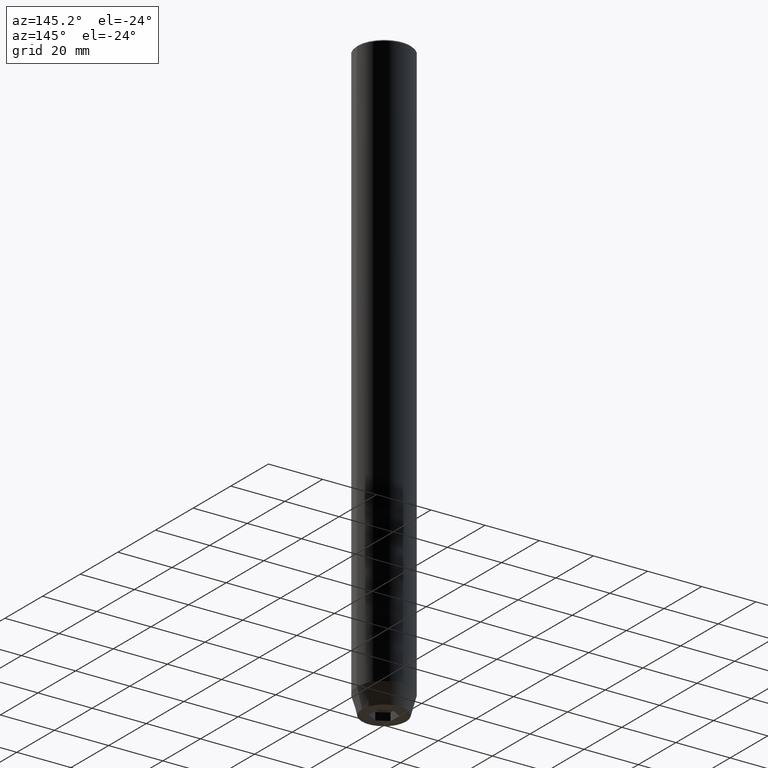
[diagram: clean part render]
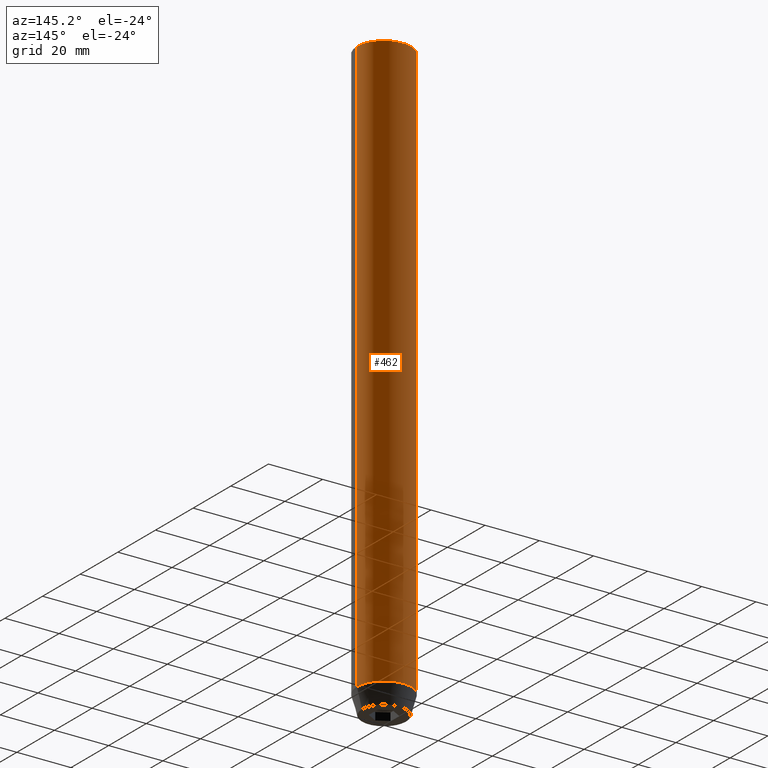
[diagram: same view with one face highlighted and labeled with its STEP entity id]
A machine part, auxiliary view. The second image highlights one B-rep face of the part: STEP entity #462.
In plain terms, the highlighted cylindrical surface (edge-blend (fillet) strip) has radius 10 mm, axis along (-0, -0, 1).
Its self-contained STEP definition (entity closure, byte-faithful):
#4 = VERTEX_POINT ( 'NONE', #357 ) ;
#16 = DIRECTION ( 'NONE',  ( 1.000000000000000000, 0.000000000000000000, 0.000000000000000000 ) ) ;
#18 = EDGE_LOOP ( 'NONE', ( #190, #160, #452, #194 ) ) ;
#22 = DIRECTION ( 'NONE',  ( -0.000000000000000000, -0.000000000000000000, 1.000000000000000000 ) ) ;
#38 = FACE_OUTER_BOUND ( 'NONE', #18, .T. ) ;
#49 = DIRECTION ( 'NONE',  ( 0.000000000000000000, 0.000000000000000000, -1.000000000000000000 ) ) ;
#69 = LINE ( 'NONE', #201, #225 ) ;
#80 = CARTESIAN_POINT ( 'NONE',  ( 10.00000000000000000, 0.000000000000000000, -0.5000000000000265343 ) ) ;
#118 = CARTESIAN_POINT ( 'NONE',  ( -10.00000000000000000, 1.224646799147353256E-15, 0.000000000000000000 ) ) ;
#129 = AXIS2_PLACEMENT_3D ( 'NONE', #324, #49, #16 ) ;
#144 = DIRECTION ( 'NONE',  ( 1.000000000000000000, 0.000000000000000000, 0.000000000000000000 ) ) ;
#151 = AXIS2_PLACEMENT_3D ( 'NONE', #424, #22, #243 ) ;
#160 = ORIENTED_EDGE ( 'NONE', *, *, #359, .T. ) ;
#188 = CIRCLE ( 'NONE', #129, 10.00000000000000000 ) ;
#190 = ORIENTED_EDGE ( 'NONE', *, *, #213, .T. ) ;
#194 = ORIENTED_EDGE ( 'NONE', *, *, #272, .F. ) ;
#201 = CARTESIAN_POINT ( 'NONE',  ( 10.00000000000000000, 0.000000000000000000, 0.000000000000000000 ) ) ;
#213 = EDGE_CURVE ( 'NONE', #4, #375, #553, .T. ) ;
#225 = VECTOR ( 'NONE', #566, 1000.000000000000000 ) ;
#243 = DIRECTION ( 'NONE',  ( 1.000000000000000000, 0.000000000000000000, 0.000000000000000000 ) ) ;
#255 = VECTOR ( 'NONE', #291, 1000.000000000000000 ) ;
#272 = EDGE_CURVE ( 'NONE', #4, #437, #69, .T. ) ;
#274 = AXIS2_PLACEMENT_3D ( 'NONE', #436, #554, #144 ) ;
#291 = DIRECTION ( 'NONE',  ( -0.000000000000000000, -0.000000000000000000, 1.000000000000000000 ) ) ;
#324 = CARTESIAN_POINT ( 'NONE',  ( 0.000000000000000000, 0.000000000000000000, -0.5000000000000265343 ) ) ;
#336 = VERTEX_POINT ( 'NONE', #574 ) ;
#357 = CARTESIAN_POINT ( 'NONE',  ( 10.00000000000000000, 0.000000000000000000, -212.9999999999999716 ) ) ;
#359 = EDGE_CURVE ( 'NONE', #375, #336, #541, .T. ) ;
#375 = VERTEX_POINT ( 'NONE', #577 ) ;
#424 = CARTESIAN_POINT ( 'NONE',  ( 0.000000000000000000, 0.000000000000000000, 0.000000000000000000 ) ) ;
#436 = CARTESIAN_POINT ( 'NONE',  ( 0.000000000000000000, 0.000000000000000000, -212.9999999999999716 ) ) ;
#437 = VERTEX_POINT ( 'NONE', #80 ) ;
#452 = ORIENTED_EDGE ( 'NONE', *, *, #573, .T. ) ;
#462 = ADVANCED_FACE ( 'NONE', ( #38 ), #472, .T. ) ;
#472 = CYLINDRICAL_SURFACE ( 'NONE', #151, 10.00000000000000000 ) ;
#541 = LINE ( 'NONE', #118, #255 ) ;
#553 = CIRCLE ( 'NONE', #274, 10.00000000000000000 ) ;
#554 = DIRECTION ( 'NONE',  ( -0.000000000000000000, -0.000000000000000000, 1.000000000000000000 ) ) ;
#566 = DIRECTION ( 'NONE',  ( -0.000000000000000000, -0.000000000000000000, 1.000000000000000000 ) ) ;
#573 = EDGE_CURVE ( 'NONE', #336, #437, #188, .T. ) ;
#574 = CARTESIAN_POINT ( 'NONE',  ( -10.00000000000000000, 1.224646799147353256E-15, -0.5000000000000265343 ) ) ;
#577 = CARTESIAN_POINT ( 'NONE',  ( -10.00000000000000000, 1.224646799147353256E-15, -212.9999999999999716 ) ) ;